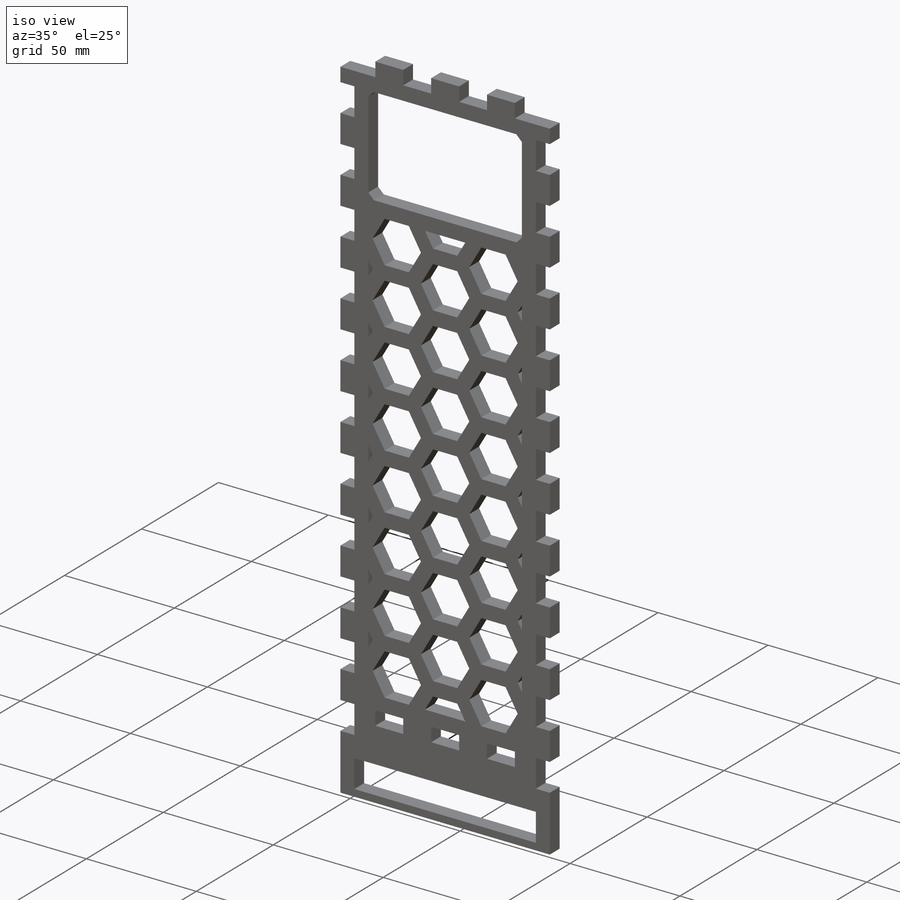
[diagram: iso view]
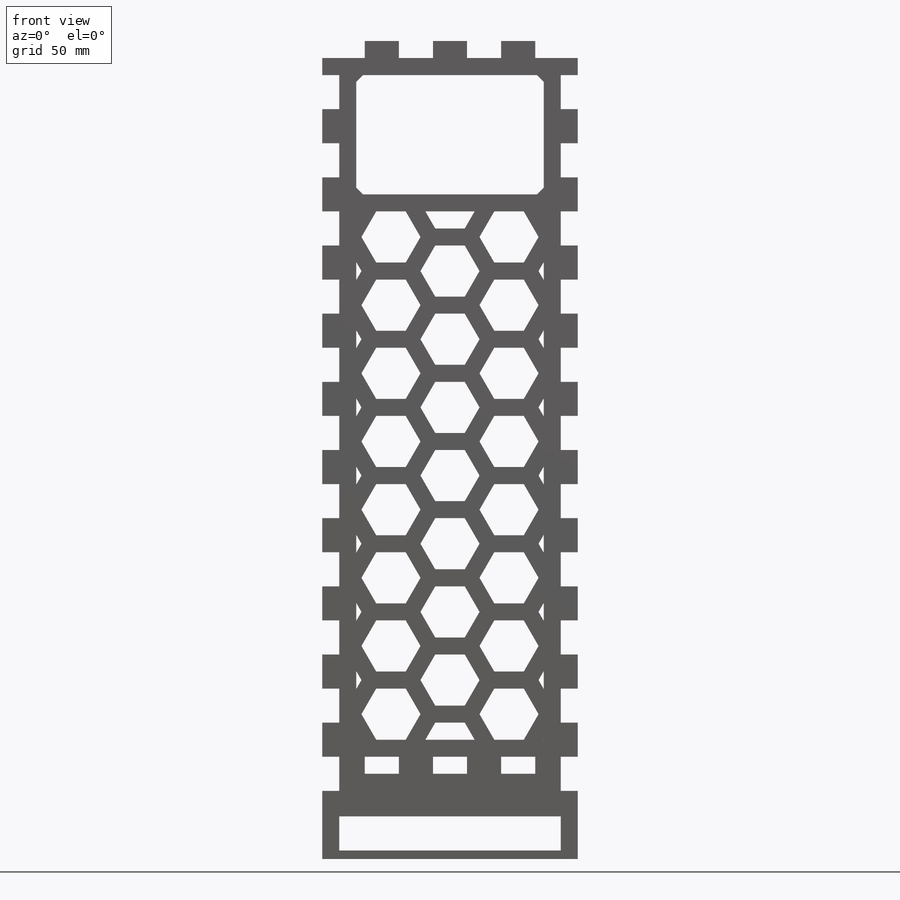
[diagram: front view]
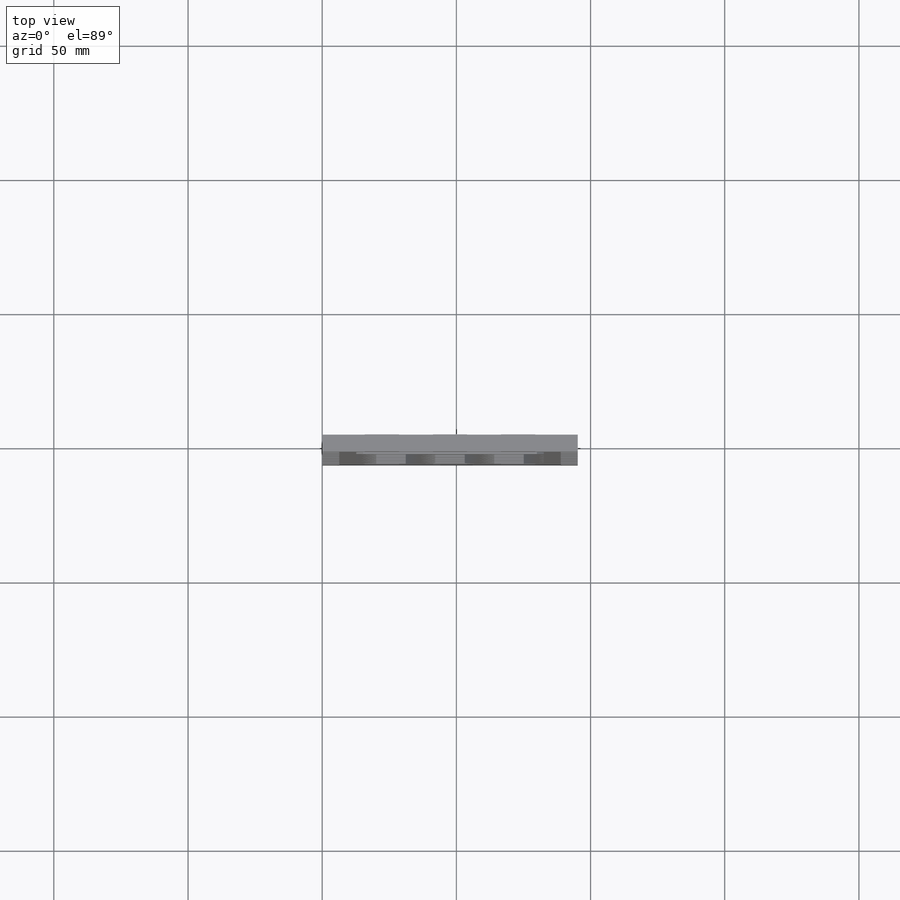
[diagram: top view]
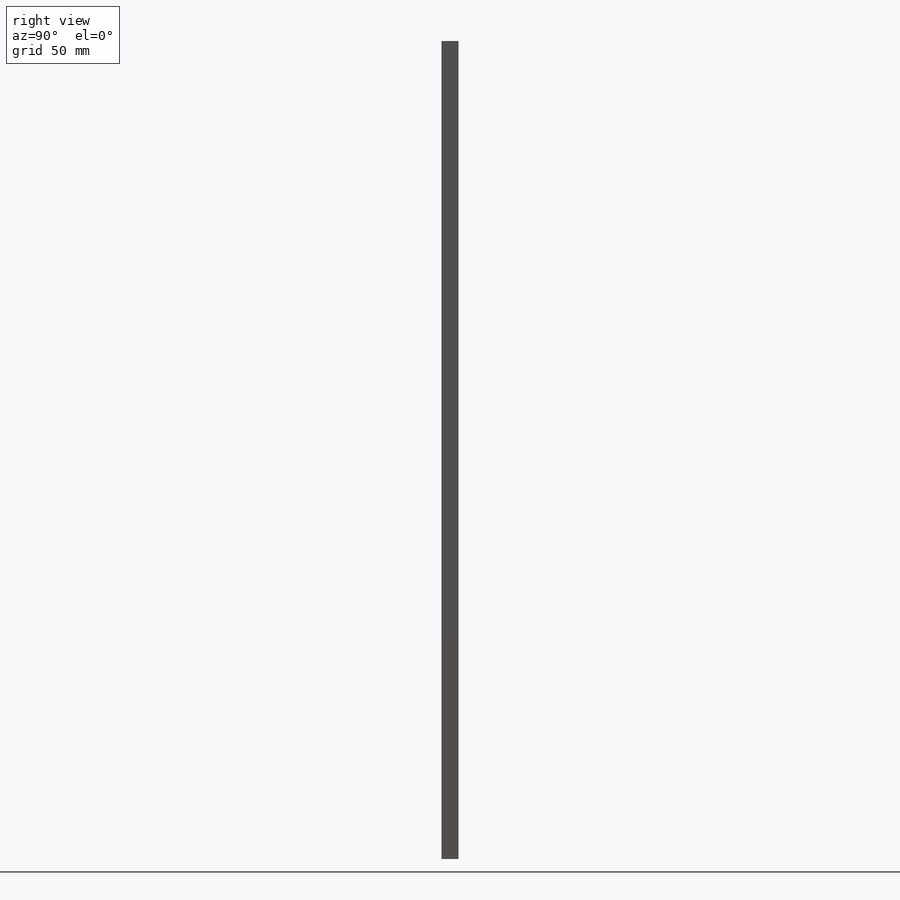
[diagram: right view]
SOLIDWORKS PART (.sldprt)
format: sldprt  version: not decoded by parser v0  size: 866,304 bytes
history: native  units: mm
features: sketch x11, cut_extrude x7, extrude x4, material x1, pattern_linear x1, boolean_combine x1, chamfer x1 (+13 scaffold rows collapsed)
feature tree (39):
  scaffold x13  (default folders/planes/origin — collapsed)
  material  "Pine"
  sketch  "Sketch1"  dims[D1=95.25mm D2=304.8mm]
  extrude  "Boss-Extrude1"  Depth=6.35mm
  sketch  "Sketch2"  dims[D1=12.7mm D2=6.35mm]
  cut_extrude  "Cut-Extrude1"  [1 undecoded]
  pattern_linear  "LPattern1"  Count1=12 Count2=1 Spacing1=25.4mm Spacing2=2.54mm
  sketch  "Sketch3"  dims[D1=12.7mm D2=12.7mm D3=12.7mm D4=12.7mm D5=6.35mm]
  cut_extrude  "Cut-Extrude2"  [1 undecoded]
  sketch  "Sketch4"  dims[D1=31.75mm]
  cut_extrude  "Cut-Extrude3"  [1 undecoded]
  sketch  "Sketch7"
  extrude  "Boss-Extrude2"  [1 undecoded]
  sketch  "Sketch5"  dims[c1.D1=2.54mm c1.D2=12.7mm c1.D3=3.175mm c1.D4=3.175mm c2.D1=6.35mm c2.D5=6.35mm c2.D2=3.175mm c2.D6=3.175mm c2.D3=6.35mm c2.D4=6.35mm]
  cut_extrude  "Cut-Extrude4"  [1 undecoded]
  sketch  "Sketch8"  dims[D1=6.35mm D2=6.35mm D3=6.35mm D4=6.35mm]
  extrude  "Boss-Extrude3"  Depth=6.35mm
  sketch  "Sketch9"  dims[D1=25.4mm D2=19.05mm]
  cut_extrude  "Cut-Extrude6"  Depth=25.4mm
  cut_extrude  "Cut-Extrude7"  [1 undecoded]
  sketch  "Sketch8<2>"
  boolean_combine  "Combine1"
  sketch  "Sketch10"
  extrude  "Boss-Extrude4"  [1 undecoded]
  sketch  "Sketch11"
  cut_extrude  "Cut-Extrude8"  [1 undecoded]
  chamfer  "Chamfer1"  Distance=2.54mm Angle=45deg
decode coverage: 12 of 25 modeling features carry decoded parameters
note: 8 parameter values undecoded
summary: no parameter record found for 8 features
note: suppression state not decoded; provenance and decode notes live in map.json
